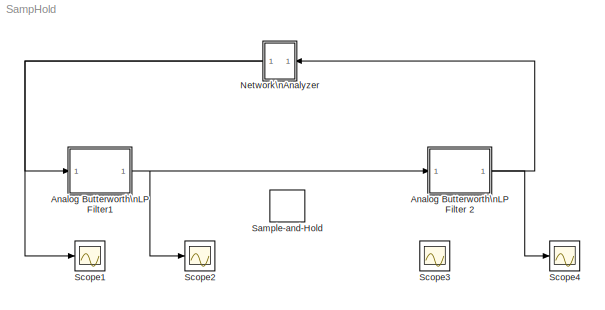
MODEL SampHold
KIND model
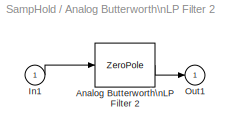
BLOCK [SubSystem] Analog Butterworth\nLP Filter 2
  FunctionWithSeparateData = off
  MaskCallbackString = |
  MaskDescription = Analog Butterworth low pass filter.\n\n(Requires Signal Processing Toolbox)
  MaskDisplay = plot(20*log10(w),20*log10(abs(h)))
  MaskEnableString = on,on
  MaskHelp = Butterworth low pass filter using MATLAB's butter command.
  MaskHideContents = off
  MaskIconFrame = on
  MaskIconOpaque = on
  MaskIconRotate = none
  MaskIconUnits = autoscale
  MaskInitialization = [z,p,k]=buttap(@2); z=@1*z; p=@1*p; k=real(prod(-p)); [num,den]=zp2tf(z,p,k); w=logspace(log10(@1/10),log10(10*@1),20); h=freqs(num,den,w);
  MaskPromptString = Cutoff frequency (rad/sec)|Order
  MaskStyleString = edit,edit
  MaskTabNameString = ,
  MaskToolTipString = on,on
  MaskTunableValueString = on,on
  MaskType = buttap
  MaskValueString = 0.45*2*pi|20
  MaskVarAliasString = ,
  MaskVisibilityString = on,on
  MinAlgLoopOccurrences = off
  Opaque = off
  Ports = [1, 1]
  PropExecContextOutsideSubsystem = off
  RTWSystemCode = Auto
  RequestExecContextInheritance = off
BLOCK [ZeroPole] Analog Butterworth\nLP Filter 2/Analog Butterworth\nLP Filter 2
  Gain = k
  Poles = p
  Zeros = z
BLOCK [Inport] Analog Butterworth\nLP Filter 2/In1
  IconDisplay = Port number
BLOCK [Outport] Analog Butterworth\nLP Filter 2/Out1
  IconDisplay = Port number
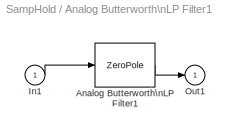
BLOCK [SubSystem] Analog Butterworth\nLP Filter1
  FunctionWithSeparateData = off
  MaskCallbackString = |
  MaskDescription = Analog Butterworth low pass filter.\n\n(Requires Signal Processing Toolbox)
  MaskDisplay = plot(20*log10(w),20*log10(abs(h)))
  MaskEnableString = on,on
  MaskHelp = Butterworth low pass filter using MATLAB's butter command.
  MaskHideContents = off
  MaskIconFrame = on
  MaskIconOpaque = on
  MaskIconRotate = none
  MaskIconUnits = autoscale
  MaskInitialization = [z,p,k]=buttap(@2); z=@1*z; p=@1*p; k=real(prod(-p)); [num,den]=zp2tf(z,p,k); w=logspace(log10(@1/10),log10(10*@1),20); h=freqs(num,den,w);
  MaskPromptString = Cutoff frequency (rad/sec)|Order
  MaskStyleString = edit,edit
  MaskTabNameString = ,
  MaskToolTipString = on,on
  MaskTunableValueString = on,on
  MaskType = buttap
  MaskValueString = 0.45*2*pi|20
  MaskVarAliasString = ,
  MaskVisibilityString = on,on
  MinAlgLoopOccurrences = off
  Opaque = off
  Ports = [1, 1]
  PropExecContextOutsideSubsystem = off
  RTWSystemCode = Auto
  RequestExecContextInheritance = off
BLOCK [ZeroPole] Analog Butterworth\nLP Filter1/Analog Butterworth\nLP Filter1
  Gain = k
  Poles = p
  Zeros = z
BLOCK [Inport] Analog Butterworth\nLP Filter1/In1
  IconDisplay = Port number
BLOCK [Outport] Analog Butterworth\nLP Filter1/Out1
  IconDisplay = Port number
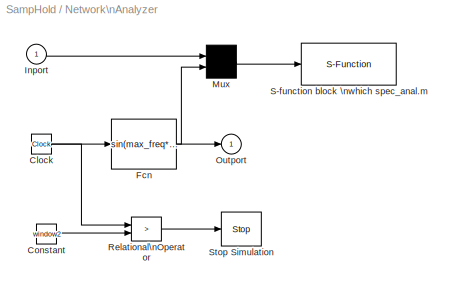
BLOCK [SubSystem] Network\nAnalyzer
  FunctionWithSeparateData = off
  MaskCallbackString = |
  MaskDisplay = plot(0,0,100,100,[11,93,93,11,11],[90,90,40,40,90],[80,60,40,20],[50,79,50,80])
  MaskEnableString = on,on
  MaskHelp = Estimates frequency response of system using chirp input. Used for EE438. See Prof. Bouman.
  MaskHideContents = off
  MaskIconFrame = on
  MaskIconOpaque = on
  MaskIconRotate = none
  MaskIconUnits = autoscale
  MaskInitialization = max_freq=0.9*pi/@2;N=@1;T_s=@2;const=2*pi/(@1*@2);window1=0.5*@1*@2;window2=@1*@2;
  MaskPromptString = Number of sample points:|Sampling period (sec):
  MaskStyleString = edit,edit
  MaskTabNameString = ,
  MaskToolTipString = on,on
  MaskTunableValueString = on,on
  MaskType = Network Analyzer
  MaskValueString = 512|0.1
  MaskVarAliasString = ,
  MaskVisibilityString = on,on
  MinAlgLoopOccurrences = off
  Opaque = off
  Ports = [1, 1]
  PropExecContextOutsideSubsystem = off
  RTWSystemCode = Auto
  RequestExecContextInheritance = off
  ShowPortLabels = none
BLOCK [Clock] Network\nAnalyzer/Clock
  Decimation = 10
BLOCK [Constant] Network\nAnalyzer/Constant
  Value = window2
BLOCK [Fcn] Network\nAnalyzer/Fcn
  Expr = sin(max_freq*u*u/(2*window1))*(0.54+0.46*cos(pi*u/window1))*(u<window1)
BLOCK [Inport] Network\nAnalyzer/Inport
  IconDisplay = Port number
BLOCK [Mux] Network\nAnalyzer/Mux
  Inputs = 2
  Ports = [2, 1]
BLOCK [Outport] Network\nAnalyzer/Outport
  IconDisplay = Port number
  InitialOutput = 0
BLOCK [RelationalOperator] Network\nAnalyzer/Relational\nOperator
  Operator = >
BLOCK [S-Function] Network\nAnalyzer/S-function block \nwhich spec_anal.m
  EnableBusSupport = off
  FunctionName = NetAnal
  Parameters = N,T_s
  Ports = [1]
BLOCK [Stop] Network\nAnalyzer/Stop Simulation
BLOCK [ZeroOrderHold] Sample-and-Hold
  SampleTime = .1
BLOCK [Scope] Scope1
  DataFormat = Array
  Floating = off
  LimitDataPoints = off
  NumInputPorts = 1
  Ports = [1]
  SampleTime = 0
  TickLabels = on
  TimeRange = 55
  YMax = 1
  YMin = -1
BLOCK [Scope] Scope2
  DataFormat = Array
  Floating = off
  LimitDataPoints = off
  NumInputPorts = 1
  Ports = [1]
  SampleTime = 0
  TickLabels = on
  TimeRange = 55
  YMax = 1
  YMin = -1
BLOCK [Scope] Scope3
  DataFormat = Array
  Floating = off
  LimitDataPoints = off
  NumInputPorts = 1
  Ports = [1]
  SampleTime = 0
  TickLabels = on
  TimeRange = 55
  YMax = 1
  YMin = -1
BLOCK [Scope] Scope4
  DataFormat = Array
  Floating = off
  LimitDataPoints = off
  NumInputPorts = 1
  Ports = [1]
  SampleTime = 0
  TickLabels = on
  TimeRange = 55
  YMax = 1
  YMin = -1
LINE Analog Butterworth\nLP Filter 2/Analog Butterworth\nLP Filter 2:1 -> Analog Butterworth\nLP Filter 2/Out1:1
LINE Analog Butterworth\nLP Filter 2/In1:1 -> Analog Butterworth\nLP Filter 2/Analog Butterworth\nLP Filter 2:1
NET Analog Butterworth\nLP Filter 2:1 -> Network\nAnalyzer:1, Scope4:1
LINE Analog Butterworth\nLP Filter1/Analog Butterworth\nLP Filter1:1 -> Analog Butterworth\nLP Filter1/Out1:1
LINE Analog Butterworth\nLP Filter1/In1:1 -> Analog Butterworth\nLP Filter1/Analog Butterworth\nLP Filter1:1
NET Analog Butterworth\nLP Filter1:1 -> Analog Butterworth\nLP Filter 2:1, Scope2:1
NET Network\nAnalyzer/Clock:1 -> Network\nAnalyzer/Fcn:1, Network\nAnalyzer/Relational\nOperator:1
LINE Network\nAnalyzer/Constant:1 -> Network\nAnalyzer/Relational\nOperator:2
NET Network\nAnalyzer/Fcn:1 -> Network\nAnalyzer/Mux:2, Network\nAnalyzer/Outport:1
LINE Network\nAnalyzer/Inport:1 -> Network\nAnalyzer/Mux:1
LINE Network\nAnalyzer/Mux:1 -> Network\nAnalyzer/S-function block \nwhich spec_anal.m:1
LINE Network\nAnalyzer/Relational\nOperator:1 -> Network\nAnalyzer/Stop Simulation:1
NET Network\nAnalyzer:1 -> Analog Butterworth\nLP Filter1:1, Scope1:1
note: NET lines group one-source signal fan-out (src -> all destinations, sorted); 1:1 wires keep LINE
